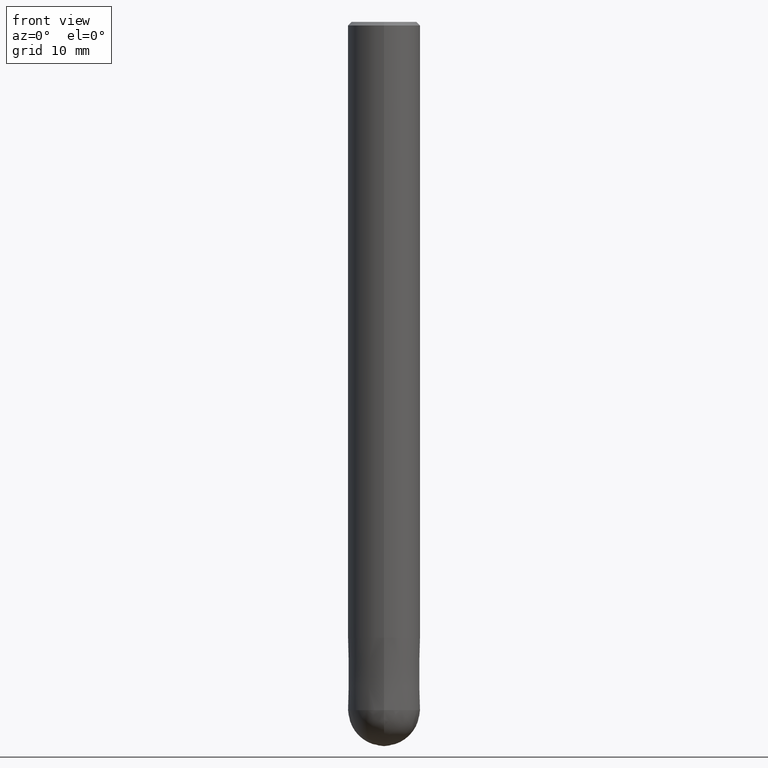
[diagram: clean part render]
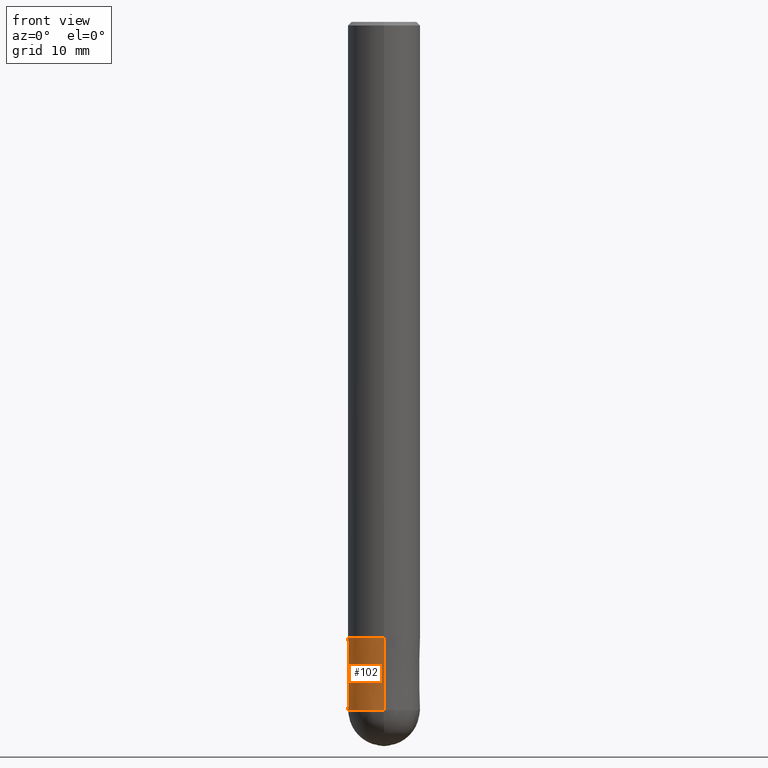
[diagram: same view with one face highlighted and labeled with its STEP entity id]
A machine part, front view. The second image highlights one B-rep face of the part: STEP entity #102.
In plain terms, the highlighted conical surface has half-angle 0.001 deg.
Its self-contained STEP definition (entity closure, byte-faithful):
#72=VERTEX_POINT('',#167);
#74=EDGE_CURVE('',#136,#116,#169,.T.);
#80=EDGE_CURVE('',#72,#136,#175,.T.);
#94=EDGE_CURVE('',#110,#116,#192,.T.);
#102=ADVANCED_FACE('',(#202),#203,.T.);
#110=VERTEX_POINT('',#212);
#114=EDGE_CURVE('',#110,#72,#217,.T.);
#116=VERTEX_POINT('',#219);
#136=VERTEX_POINT('',#239);
#167=CARTESIAN_POINT('',(6.1229093084765E-016,-4.9999,-85.0));
#169=LINE('',#265,#266);
#175=CIRCLE('',#274,4.9999);
#192=CIRCLE('',#297,5.0);
#202=FACE_OUTER_BOUND('',#308,.T.);
#203=CONICAL_SURFACE('',#309,4.99995,9.99999999973218E-006);
#212=CARTESIAN_POINT('',(6.12303176911188E-016,-5.0,-95.0));
#217=LINE('',#325,#326);
#219=CARTESIAN_POINT('',(0.0,5.0,-95.0));
#239=CARTESIAN_POINT('',(0.0,4.9999,-85.0));
#265=CARTESIAN_POINT('',(-6.12297053879419E-016,4.99995,-90.0));
#266=VECTOR('',#376,1.0);
#274=AXIS2_PLACEMENT_3D('',#380,#381,#382);
#297=AXIS2_PLACEMENT_3D('',#412,#413,#414);
#308=EDGE_LOOP('',(#431,#432,#433,#434));
#309=AXIS2_PLACEMENT_3D('',#435,#436,#437);
#325=CARTESIAN_POINT('',(6.12297053879419E-016,-4.99995,-90.0));
#326=VECTOR('',#457,1.0);
#376=DIRECTION('',(-1.22460635376917E-021,9.99999999956551E-006,-0.99999999995));
#380=CARTESIAN_POINT('',(0.0,0.0,-85.0));
#381=DIRECTION('',(0.0,0.0,-1.0));
#382=DIRECTION('',(0.0,1.0,0.0));
#412=CARTESIAN_POINT('',(0.0,0.0,-95.0));
#413=DIRECTION('',(0.0,0.0,-1.0));
#414=DIRECTION('',(0.0,1.0,0.0));
#431=ORIENTED_EDGE('',*,*,#74,.T.);
#432=ORIENTED_EDGE('',*,*,#94,.F.);
#433=ORIENTED_EDGE('',*,*,#114,.T.);
#434=ORIENTED_EDGE('',*,*,#80,.T.);
#435=CARTESIAN_POINT('',(0.0,0.0,-90.0));
#436=DIRECTION('',(0.0,-0.0,-1.0));
#437=DIRECTION('',(0.0,1.0,0.0));
#457=DIRECTION('',(-1.22460635376917E-021,9.99999999956551E-006,0.99999999995));